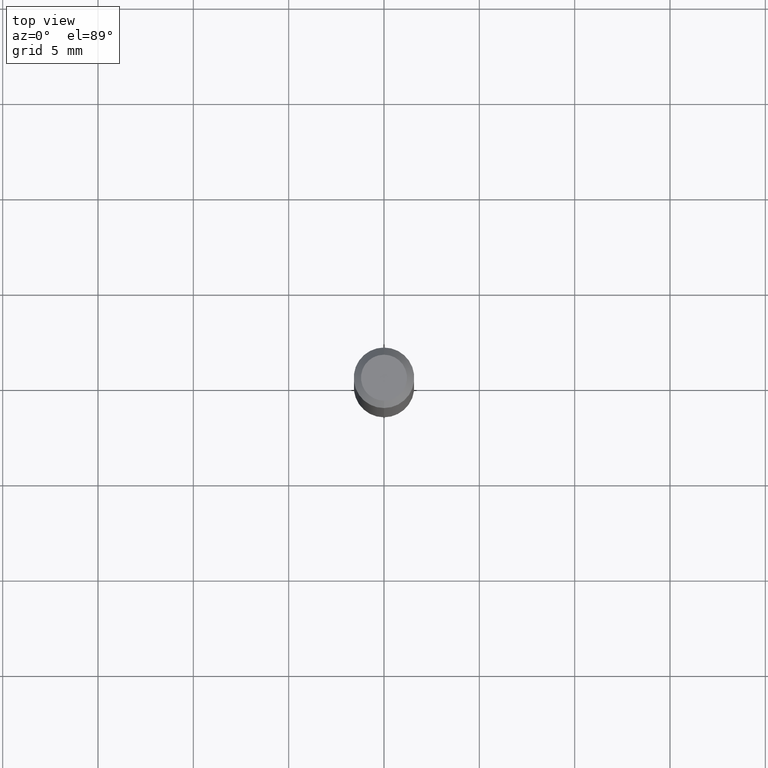
[diagram: clean part render]
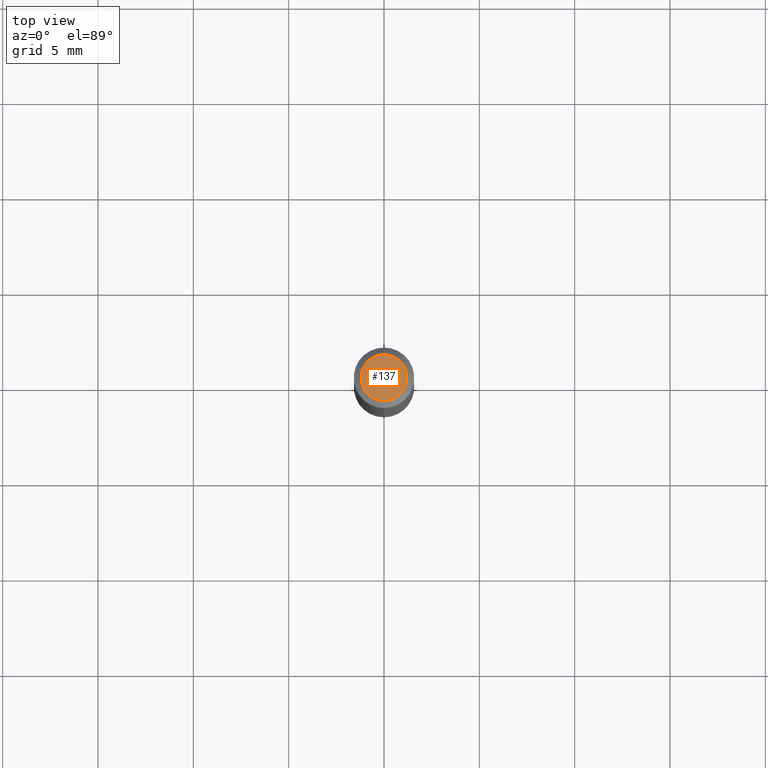
[diagram: same view with one face highlighted and labeled with its STEP entity id]
A machine part, top view. The second image highlights one B-rep face of the part: STEP entity #137.
In plain terms, the highlighted planar face has unit normal (0, -0, -1).
Its self-contained STEP definition (entity closure, byte-faithful):
#3 = CIRCLE ( 'NONE', #141, 0.04749999999999999362 ) ;
#53 = ORIENTED_EDGE ( 'NONE', *, *, #301, .T. ) ;
#64 = ORIENTED_EDGE ( 'NONE', *, *, #142, .T. ) ;
#93 = CARTESIAN_POINT ( 'NONE',  ( 2.022994137367813598E-45, -2.889531780385158954E-31, -8.274180550409738772E-17 ) ) ;
#97 = AXIS2_PLACEMENT_3D ( 'NONE', #276, #325, #452 ) ;
#137 = ADVANCED_FACE ( 'NONE', ( #317 ), #147, .F. ) ;
#141 = AXIS2_PLACEMENT_3D ( 'NONE', #93, #146, #427 ) ;
#142 = EDGE_CURVE ( 'NONE', #357, #250, #153, .T. ) ;
#146 = DIRECTION ( 'NONE',  ( -2.445391970552670248E-29, 3.491591371842049924E-15, 1.000000000000000000 ) ) ;
#147 = PLANE ( 'NONE',  #286 ) ;
#153 = CIRCLE ( 'NONE', #97, 0.04749999999999999362 ) ;
#160 = CARTESIAN_POINT ( 'NONE',  ( -3.773273898774340269E-16, -0.04749999999999999362, 8.310878465839997429E-17 ) ) ;
#181 = EDGE_LOOP ( 'NONE', ( #53, #64 ) ) ;
#250 = VERTEX_POINT ( 'NONE', #369 ) ;
#276 = CARTESIAN_POINT ( 'NONE',  ( 2.022994137367813598E-45, -2.889531780385158954E-31, -8.274180550409738772E-17 ) ) ;
#286 = AXIS2_PLACEMENT_3D ( 'NONE', #484, #312, #550 ) ;
#301 = EDGE_CURVE ( 'NONE', #250, #357, #3, .T. ) ;
#312 = DIRECTION ( 'NONE',  ( 2.445391970552670248E-29, -3.491591371842049529E-15, -1.000000000000000000 ) ) ;
#317 = FACE_OUTER_BOUND ( 'NONE', #181, .T. ) ;
#325 = DIRECTION ( 'NONE',  ( -2.445391970552670248E-29, 3.491591371842049924E-15, 1.000000000000000000 ) ) ;
#357 = VERTEX_POINT ( 'NONE', #160 ) ;
#369 = CARTESIAN_POINT ( 'NONE',  ( 3.840629472727447874E-16, 0.04749999999999999362, -2.485923956665947374E-16 ) ) ;
#427 = DIRECTION ( 'NONE',  ( -6.982962677686266711E-15, -1.000000000000000000, 3.491591371842049924E-15 ) ) ;
#452 = DIRECTION ( 'NONE',  ( -6.982962677686266711E-15, -1.000000000000000000, 3.491591371842049924E-15 ) ) ;
#484 = CARTESIAN_POINT ( 'NONE',  ( 3.316907271900976096E-16, 0.04749999999999999362, 3.181520653107694493E-17 ) ) ;
#550 = DIRECTION ( 'NONE',  ( 6.982962677686265922E-15, 1.000000000000000000, -3.491591371842049529E-15 ) ) ;